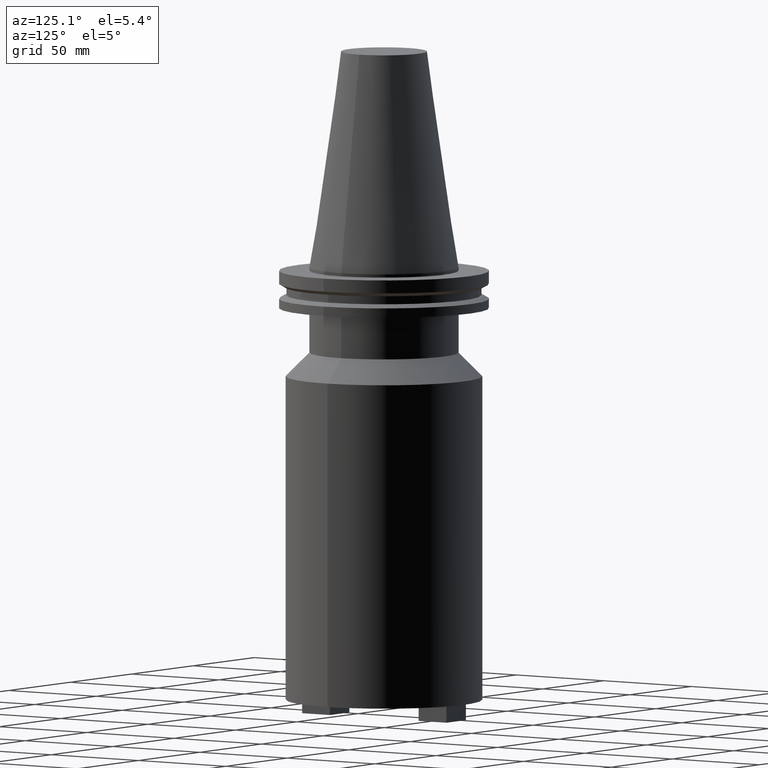
[diagram: clean part render]
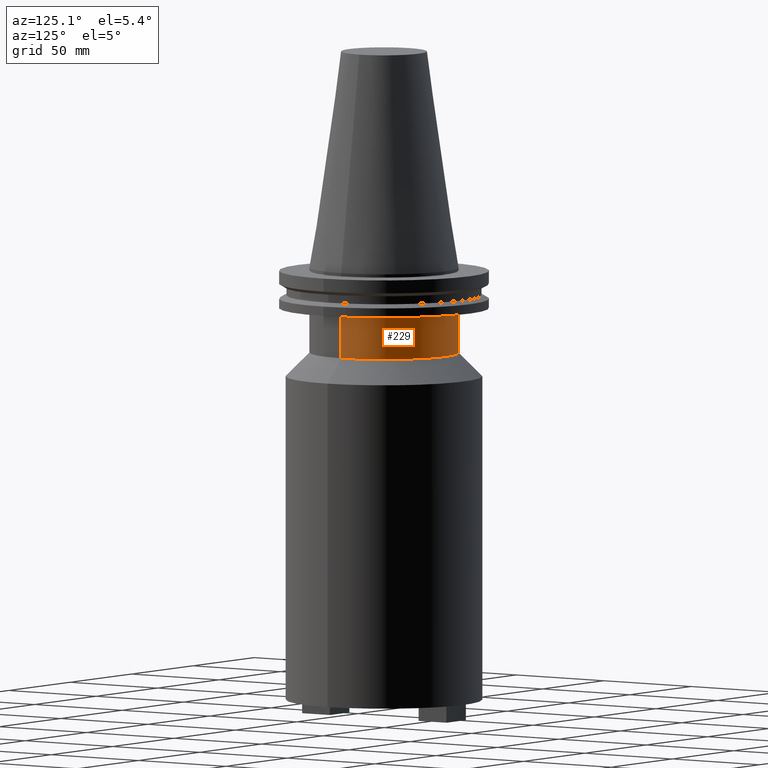
[diagram: same view with one face highlighted and labeled with its STEP entity id]
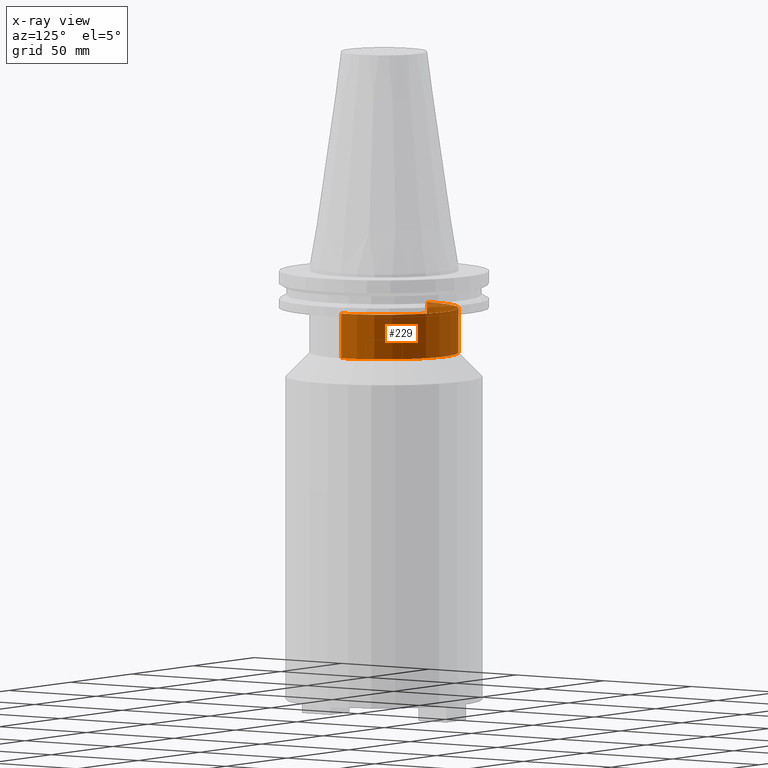
[diagram: x-ray of the same camera — body ghosted, the highlighted face saturated]
A machine part, auxiliary view. The second image highlights one B-rep face of the part: STEP entity #229.
The next image is the same camera in x-ray: the body ghosted, the highlighted face saturated — about 5% of this face is hidden behind the body in this view.
In plain terms, the highlighted cylindrical surface (partial cylindrical patch) has radius 34.925 mm, axis along (-0, -0, 1).
Its self-contained STEP definition (entity closure, byte-faithful):
#11 = ORIENTED_EDGE ( 'NONE', *, *, #362, .T. ) ;
#22 = CARTESIAN_POINT ( 'NONE',  ( 0.000000000000000000, 0.000000000000000000, -39.99999999999999289 ) ) ;
#39 = DIRECTION ( 'NONE',  ( -0.000000000000000000, -0.000000000000000000, 1.000000000000000000 ) ) ;
#108 = DIRECTION ( 'NONE',  ( -0.000000000000000000, -0.000000000000000000, 1.000000000000000000 ) ) ;
#120 = CARTESIAN_POINT ( 'NONE',  ( 34.92499999999999716, 0.000000000000000000, 101.5999999999999943 ) ) ;
#142 = VERTEX_POINT ( 'NONE', #961 ) ;
#177 = ORIENTED_EDGE ( 'NONE', *, *, #223, .F. ) ;
#207 = AXIS2_PLACEMENT_3D ( 'NONE', #22, #676, #359 ) ;
#223 = EDGE_CURVE ( 'NONE', #142, #473, #882, .T. ) ;
#229 = ADVANCED_FACE ( 'NONE', ( #803 ), #381, .T. ) ;
#272 = DIRECTION ( 'NONE',  ( -0.000000000000000000, -0.000000000000000000, 1.000000000000000000 ) ) ;
#294 = DIRECTION ( 'NONE',  ( -0.000000000000000000, -0.000000000000000000, 1.000000000000000000 ) ) ;
#295 = EDGE_CURVE ( 'NONE', #142, #914, #551, .T. ) ;
#310 = CARTESIAN_POINT ( 'NONE',  ( -34.92499999999999716, 4.277078946022130887E-15, -39.99999999999999289 ) ) ;
#359 = DIRECTION ( 'NONE',  ( 1.000000000000000000, 0.000000000000000000, 0.000000000000000000 ) ) ;
#362 = EDGE_CURVE ( 'NONE', #914, #611, #849, .T. ) ;
#381 = CYLINDRICAL_SURFACE ( 'NONE', #902, 34.92499999999999716 ) ;
#395 = VECTOR ( 'NONE', #272, 1000.000000000000000 ) ;
#420 = ORIENTED_EDGE ( 'NONE', *, *, #295, .T. ) ;
#473 = VERTEX_POINT ( 'NONE', #1086 ) ;
#488 = CARTESIAN_POINT ( 'NONE',  ( -34.92499999999999716, 4.277078946022130887E-15, -19.04999999999999716 ) ) ;
#531 = AXIS2_PLACEMENT_3D ( 'NONE', #871, #108, #1042 ) ;
#551 = CIRCLE ( 'NONE', #207, 34.92499999999999716 ) ;
#571 = ORIENTED_EDGE ( 'NONE', *, *, #1058, .F. ) ;
#580 = EDGE_LOOP ( 'NONE', ( #420, #11, #571, #177 ) ) ;
#611 = VERTEX_POINT ( 'NONE', #488 ) ;
#623 = CARTESIAN_POINT ( 'NONE',  ( -34.92499999999999716, 4.277078946022130887E-15, 101.5999999999999943 ) ) ;
#634 = DIRECTION ( 'NONE',  ( 1.000000000000000000, 0.000000000000000000, 0.000000000000000000 ) ) ;
#676 = DIRECTION ( 'NONE',  ( -0.000000000000000000, -0.000000000000000000, 1.000000000000000000 ) ) ;
#803 = FACE_OUTER_BOUND ( 'NONE', #580, .T. ) ;
#849 = LINE ( 'NONE', #623, #395 ) ;
#851 = CIRCLE ( 'NONE', #531, 34.92499999999999716 ) ;
#871 = CARTESIAN_POINT ( 'NONE',  ( 0.000000000000000000, 0.000000000000000000, -19.04999999999999716 ) ) ;
#882 = LINE ( 'NONE', #120, #1022 ) ;
#902 = AXIS2_PLACEMENT_3D ( 'NONE', #1069, #294, #634 ) ;
#914 = VERTEX_POINT ( 'NONE', #310 ) ;
#961 = CARTESIAN_POINT ( 'NONE',  ( 34.92499999999999716, 0.000000000000000000, -39.99999999999999289 ) ) ;
#1022 = VECTOR ( 'NONE', #39, 1000.000000000000000 ) ;
#1042 = DIRECTION ( 'NONE',  ( 1.000000000000000000, 0.000000000000000000, 0.000000000000000000 ) ) ;
#1058 = EDGE_CURVE ( 'NONE', #473, #611, #851, .T. ) ;
#1069 = CARTESIAN_POINT ( 'NONE',  ( 0.000000000000000000, 0.000000000000000000, 101.5999999999999943 ) ) ;
#1086 = CARTESIAN_POINT ( 'NONE',  ( 34.92499999999999716, 0.000000000000000000, -19.04999999999999716 ) ) ;